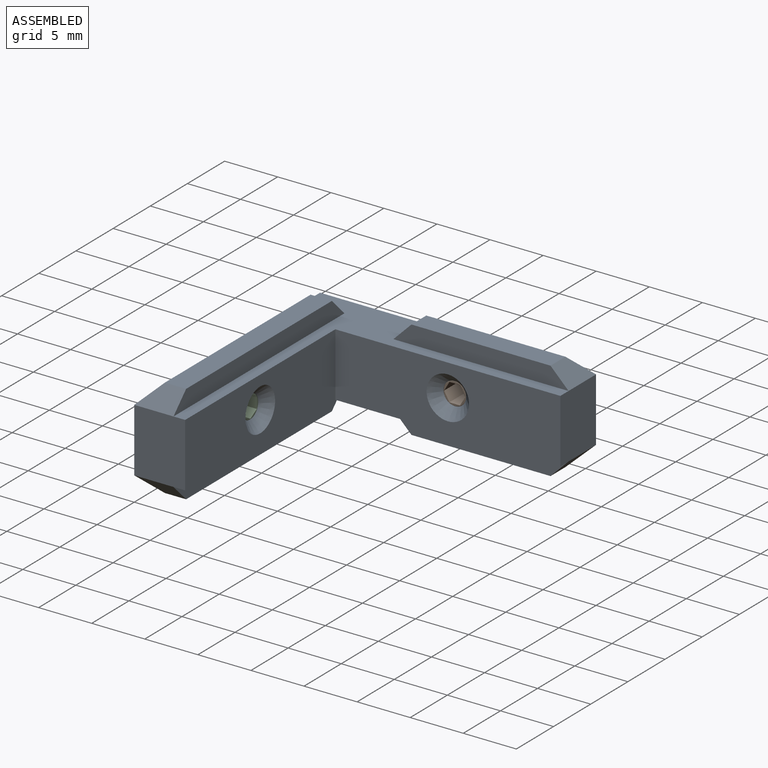
[diagram: assembled view]
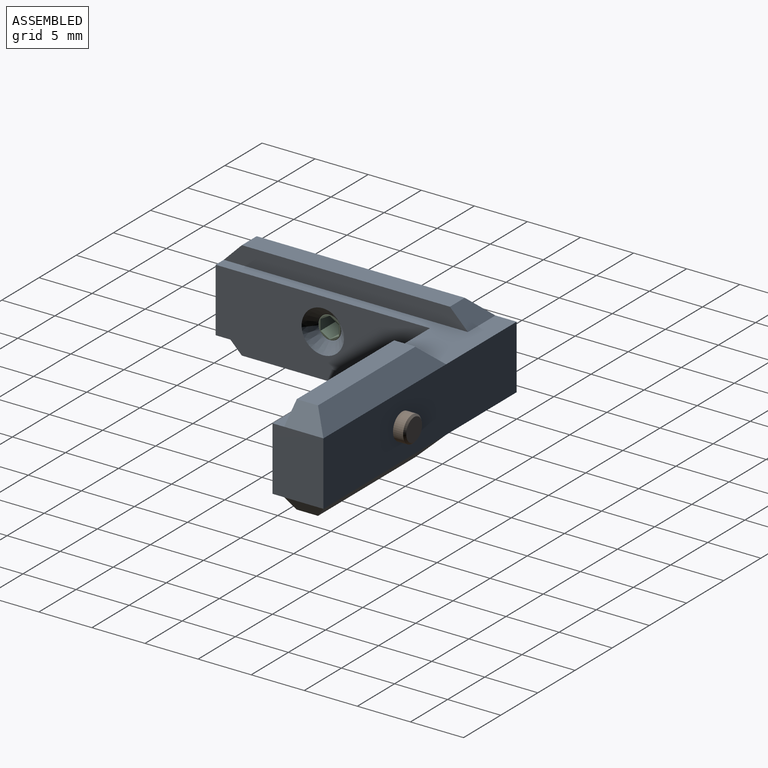
[diagram: assembled view, second angle]
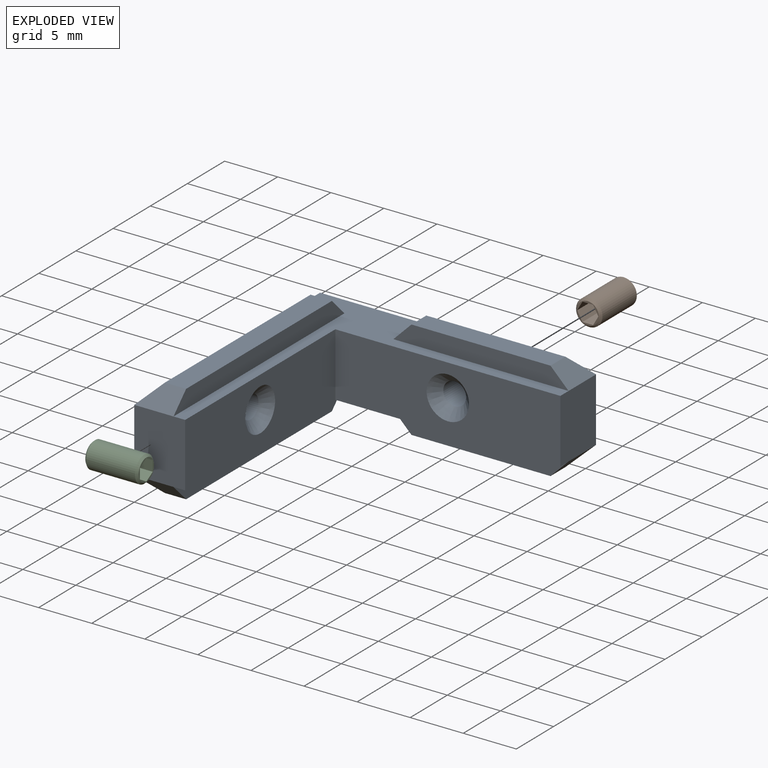
[diagram: exploded view]
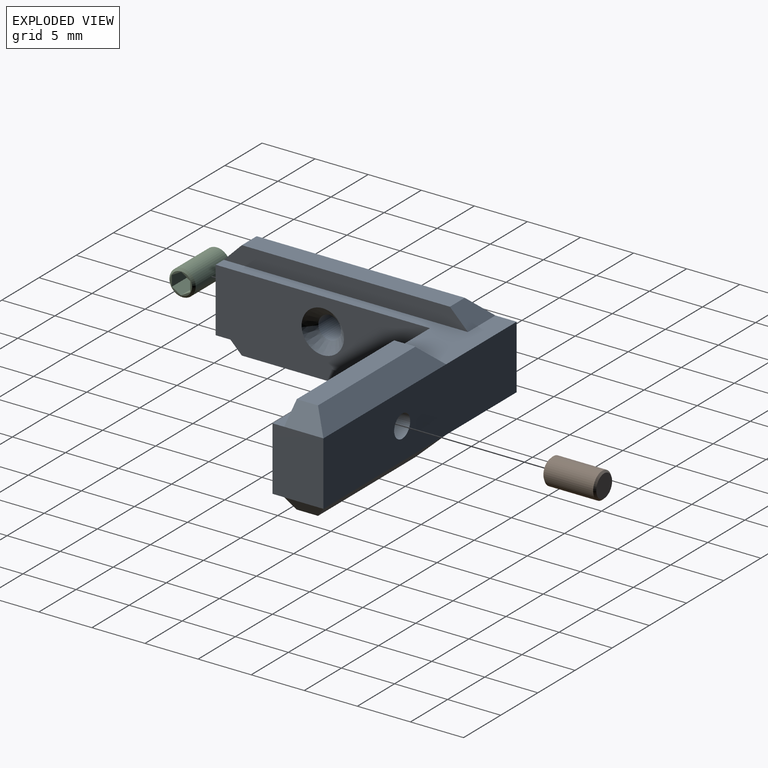
[diagram: exploded view, second angle]
ASSEMBLY  parts=3 mates=2
PART A: 32 faces, bbox 26x25x9.4 mm
  f0: plane 6x4.8mm, normal (1,0,0), area 28.8mm2, adj f1,f5,f6,f7,f24,f26
  f1: plane 26x6mm, normal (0,1,0), area 152.4mm2, adj f0,f2,f6,f7,f16,f17,f22
  f2: plane 25x6mm, normal (-1,0,0), area 146.4mm2, adj f1,f3,f6,f7,f10,f11,f20
  f3: plane 6x4.8mm, normal (0,-1,0), area 28.8mm2, adj f2,f4,f6,f7,f30,f31
  f4: plane 20.2x6mm, normal (1,0,0), area 108.6mm2, adj f3,f5,f6,f7,f21
  f5: plane 21.2x6mm, normal (0,-1,0), area 114.6mm2, adj f0,f4,f6,f7,f23
  f6: plane 26x25mm, normal (0,0,1), area 75.6mm2, adj f0,f1,f2,f3,f4,f5,f12,f19
  f7: plane 26x25mm, normal (0,0,-1), area 75.6mm2, adj f0,f1,f2,f3,f4,f5,f9,f15
  f8: plane 19.6x2mm, normal (0,0,-1), area 39.2mm2, adj f9,f10,f29,f30
  f9: plane 23x1.7mm, normal (1,0,0), area 36.2mm2, adj f7,f8,f29,f30
  f10: plane 23x1.7mm, normal (-0.71,0,-0.71), area 51.2mm2, adj f2,f8,f29,f30
  f11: plane 23x1.7mm, normal (-0.71,0,0.71), area 51.2mm2, adj f2,f13,f28,f31
  f12: plane 23x1.7mm, normal (1,0,0), area 36.2mm2, adj f6,f13,f28,f31
  f13: plane 19.6x2mm, normal (0,0,1), area 39.2mm2, adj f11,f12,f28,f31
  f14: plane 13.1x2mm, normal (0,0,-1), area 26.2mm2, adj f15,f16,f24,f25
  f15: plane 16.5x1.7mm, normal (0,-1,0), area 25.2mm2, adj f7,f14,f24,f25
  f16: plane 16.5x1.7mm, normal (0,0.71,-0.71), area 35.6mm2, adj f1,f14,f24,f25
  f17: plane 16.5x1.7mm, normal (0,0.71,0.71), area 35.6mm2, adj f1,f18,f26,f27
  f18: plane 13.1x2mm, normal (0,0,1), area 26.2mm2, adj f17,f19,f26,f27
  f19: plane 16.5x1.7mm, normal (0,-1,0), area 25.2mm2, adj f6,f18,f26,f27
  f20: cylinder r=1.07mm len=3.88mm, axis (1,0,0), area 26.2mm2, adj f2,f21
  f21: cone r=1.07mm half-angle=45deg, axis (1,0,0), area 12.6mm2, adj f4,f20
  f22: cylinder r=1.07mm len=3.88mm, axis (0,-1,0), area 26.2mm2, adj f1,f23
  f23: cone r=1.07mm half-angle=45deg, axis (0,-1,0), area 12.6mm2, adj f5,f22
  f24: plane 3.7x1.7mm, normal (0.71,0,-0.71), area 6.9mm2, adj f0,f14,f15,f16
  f25: plane 3.7x1.7mm, normal (-0.71,0,-0.71), area 6.9mm2, adj f7,f14,f15,f16
  f26: plane 3.7x1.7mm, normal (0.71,0,0.71), area 6.9mm2, adj f0,f17,f18,f19
  f27: plane 3.7x1.7mm, normal (-0.71,0,0.71), area 6.9mm2, adj f6,f17,f18,f19
  f28: plane 3.7x1.7mm, normal (0,0.71,0.71), area 6.9mm2, adj f6,f11,f12,f13
  f29: plane 3.7x1.7mm, normal (0,0.71,-0.71), area 6.9mm2, adj f7,f8,f9,f10
  f30: plane 3.7x1.7mm, normal (0,-0.71,-0.71), area 6.9mm2, adj f3,f8,f9,f10
  f31: plane 3.7x1.7mm, normal (0,-0.71,0.71), area 6.9mm2, adj f3,f11,f12,f13
PART B: 12 faces, bbox 2.5x2.5x5 mm
  f0: plane 2.08x2.08mm, normal (0,0,1), area 0.8mm2, adj f4,f5,f6,f7,f8,f9,f11
  f1: cylinder r=1.24mm len=4.63mm, axis (0,0,1), area 36mm2, adj f3,f11
  f2: plane 2.13x2.13mm, normal (0,0,-1), area 3.6mm2, adj f3
  f3: cone r=1.07mm half-angle=45deg, axis (0,0,1), area 1.8mm2, adj f1,f2
  f4: plane 2x0.87mm, normal (-0.87,-0.5,0), area 2mm2, adj f0,f5,f9,f10
  f5: plane 2x0.87mm, normal (-0.87,0.5,0), area 2mm2, adj f0,f4,f6,f10
  f6: plane 2x1mm, normal (0,1,0), area 2mm2, adj f0,f5,f7,f10
  f7: plane 2x0.87mm, normal (0.87,0.5,0), area 2mm2, adj f0,f6,f8,f10
  f8: plane 2x0.87mm, normal (0.87,-0.5,0), area 2mm2, adj f0,f7,f9,f10
  f9: plane 2x1mm, normal (0,-1,0), area 2mm2, adj f0,f4,f8,f10
  f10: plane 2x1.73mm, normal (0,0,1), area 2.6mm2, adj f4,f5,f6,f7,f8,f9
  f11: cone r=1.24mm half-angle=45deg, axis (0,0,-1), area 2mm2, adj f0,f1
PART C: same geometry as B
PLACE A at identity fixed
PLACE B rot(axis=(1,0,0),90deg) t=(45.88,-3.88,31.09)mm
PLACE C rot(axis=(0,1,0),90deg) t=(3.88,16.19,-30.48)mm
MATE fastened B.f1 <-> A.f22  axis (0,-1,0) through (15.4,-3.88,0)mm
MATE fastened C.f1 <-> A.f20  axis (1,0,0) through (3.88,-14.9,0)mm
